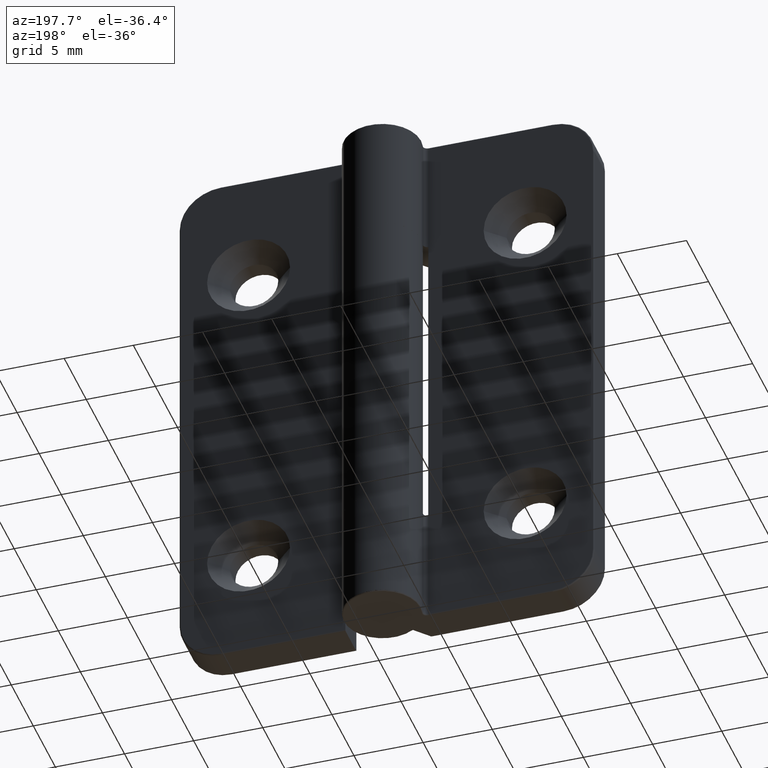
[diagram: clean part render]
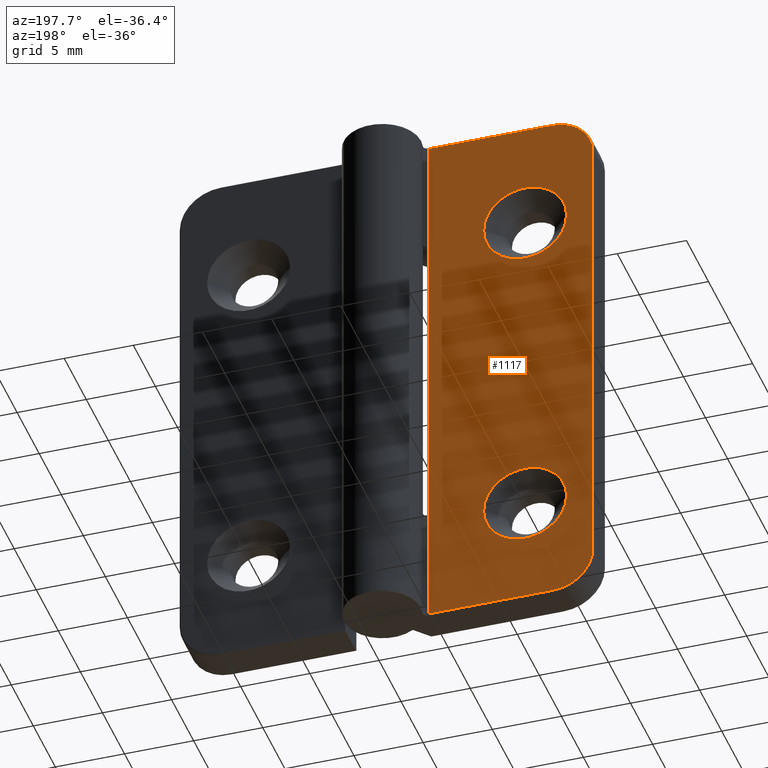
[diagram: same view with one face highlighted and labeled with its STEP entity id]
A machine part, auxiliary view. The second image highlights one B-rep face of the part: STEP entity #1117.
In plain terms, the highlighted planar face has unit normal (0, 1, 0).
Its self-contained STEP definition (entity closure, byte-faithful):
#96=FACE_BOUND('',#300,.T.);
#97=FACE_BOUND('',#301,.T.);
#147=CIRCLE('',#1222,2.9);
#151=CIRCLE('',#1228,2.9);
#156=CIRCLE('',#1237,3.);
#157=CIRCLE('',#1238,3.);
#222=FACE_OUTER_BOUND('',#299,.T.);
#299=EDGE_LOOP('',(#884,#885,#886,#887,#888,#889,#890,#891));
#300=EDGE_LOOP('',(#892));
#301=EDGE_LOOP('',(#893));
#366=LINE('',#1728,#435);
#381=LINE('',#1799,#450);
#391=LINE('',#1866,#460);
#393=LINE('',#1878,#462);
#394=LINE('',#1887,#463);
#395=LINE('',#1895,#464);
#435=VECTOR('',#1333,23.);
#450=VECTOR('',#1392,8.4);
#460=VECTOR('',#1462,9.);
#462=VECTOR('',#1476,34.);
#463=VECTOR('',#1489,9.);
#464=VECTOR('',#1502,8.4);
#504=VERTEX_POINT('',#1725);
#505=VERTEX_POINT('',#1727);
#529=VERTEX_POINT('',#1798);
#545=VERTEX_POINT('',#1862);
#547=VERTEX_POINT('',#1868);
#549=VERTEX_POINT('',#1874);
#551=VERTEX_POINT('',#1880);
#552=VERTEX_POINT('',#1885);
#554=VERTEX_POINT('',#1896);
#555=VERTEX_POINT('',#1898);
#606=EDGE_CURVE('',#504,#505,#366,.T.);
#637=EDGE_CURVE('',#505,#529,#381,.T.);
#666=EDGE_CURVE('',#529,#545,#391,.T.);
#669=EDGE_CURVE('',#545,#547,#147,.T.);
#672=EDGE_CURVE('',#547,#549,#393,.T.);
#675=EDGE_CURVE('',#549,#551,#151,.T.);
#677=EDGE_CURVE('',#551,#552,#394,.T.);
#681=EDGE_CURVE('',#552,#504,#395,.T.);
#682=EDGE_CURVE('',#554,#554,#156,.T.);
#683=EDGE_CURVE('',#555,#555,#157,.T.);
#884=ORIENTED_EDGE('',*,*,#677,.F.);
#885=ORIENTED_EDGE('',*,*,#675,.F.);
#886=ORIENTED_EDGE('',*,*,#672,.F.);
#887=ORIENTED_EDGE('',*,*,#669,.F.);
#888=ORIENTED_EDGE('',*,*,#666,.F.);
#889=ORIENTED_EDGE('',*,*,#637,.F.);
#890=ORIENTED_EDGE('',*,*,#606,.F.);
#891=ORIENTED_EDGE('',*,*,#681,.F.);
#892=ORIENTED_EDGE('',*,*,#682,.T.);
#893=ORIENTED_EDGE('',*,*,#683,.T.);
#1076=PLANE('',#1236);
#1117=ADVANCED_FACE('',(#222,#96,#97),#1076,.T.);
#1222=AXIS2_PLACEMENT_3D('',#1872,#1469,#1470);
#1228=AXIS2_PLACEMENT_3D('',#1883,#1483,#1484);
#1236=AXIS2_PLACEMENT_3D('',#1894,#1500,#1501);
#1237=AXIS2_PLACEMENT_3D('',#1897,#1503,#1504);
#1238=AXIS2_PLACEMENT_3D('',#1899,#1505,#1506);
#1333=DIRECTION('',(0.,0.,1.));
#1392=DIRECTION('',(0.,0.,1.));
#1462=DIRECTION('',(-1.,0.,0.));
#1469=DIRECTION('center_axis',(0.,-1.,0.));
#1470=DIRECTION('ref_axis',(-0.707106781186547,0.,0.707106781186547));
#1476=DIRECTION('',(0.,0.,-1.));
#1483=DIRECTION('center_axis',(0.,-1.,0.));
#1484=DIRECTION('ref_axis',(-0.707106781186547,0.,-0.707106781186547));
#1489=DIRECTION('',(1.,0.,0.));
#1500=DIRECTION('center_axis',(0.,1.,0.));
#1501=DIRECTION('ref_axis',(-1.,0.,0.));
#1502=DIRECTION('',(0.,0.,1.));
#1503=DIRECTION('center_axis',(0.,-1.,0.));
#1504=DIRECTION('ref_axis',(1.,0.,0.));
#1505=DIRECTION('center_axis',(0.,-1.,0.));
#1506=DIRECTION('ref_axis',(1.,0.,0.));
#1725=CARTESIAN_POINT('',(-3.,2.5,-11.5));
#1727=CARTESIAN_POINT('',(-3.,2.5,11.5));
#1728=CARTESIAN_POINT('',(-3.,2.5,0.));
#1798=CARTESIAN_POINT('',(-3.,2.5,19.9));
#1799=CARTESIAN_POINT('',(-3.,2.5,0.));
#1862=CARTESIAN_POINT('',(-12.,2.5,19.9));
#1866=CARTESIAN_POINT('',(-5.80214173443126,2.5,19.9));
#1868=CARTESIAN_POINT('',(-14.9,2.5,17.));
#1872=CARTESIAN_POINT('Origin',(-12.,2.5,17.));
#1874=CARTESIAN_POINT('',(-14.9,2.5,-17.));
#1878=CARTESIAN_POINT('',(-14.9,2.5,0.));
#1880=CARTESIAN_POINT('',(-12.,2.5,-19.9));
#1883=CARTESIAN_POINT('Origin',(-12.,2.5,-17.));
#1885=CARTESIAN_POINT('',(-3.,2.5,-19.9));
#1887=CARTESIAN_POINT('',(-5.80214173443126,2.5,-19.9));
#1894=CARTESIAN_POINT('Origin',(-3.,2.5,0.));
#1895=CARTESIAN_POINT('',(-3.,2.5,0.));
#1896=CARTESIAN_POINT('',(-7.,2.5,-12.));
#1897=CARTESIAN_POINT('Origin',(-10.,2.5,-12.));
#1898=CARTESIAN_POINT('',(-7.,2.5,12.));
#1899=CARTESIAN_POINT('Origin',(-10.,2.5,12.));